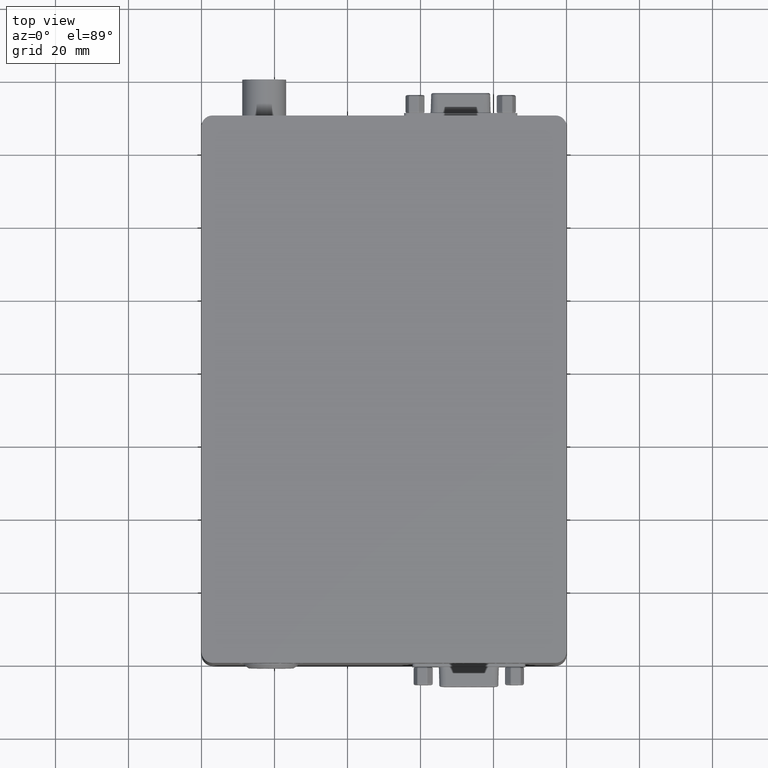
[diagram: clean part render]
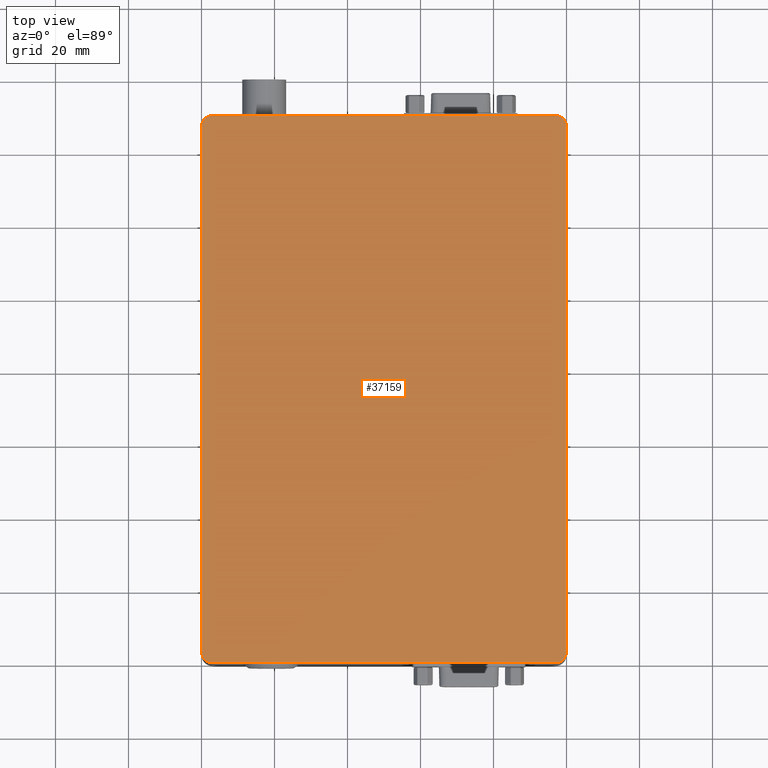
[diagram: same view with one face highlighted and labeled with its STEP entity id]
A machine part, top view. The second image highlights one B-rep face of the part: STEP entity #37159.
In plain terms, the highlighted planar face has unit normal (0, 0, 1).
Its self-contained STEP definition (entity closure, byte-faithful):
#219 = CARTESIAN_POINT ( 'NONE',  ( 3.000000000000000000, 150.0000000000000000, 0.000000000000000000 ) ) ;
#1150 = CARTESIAN_POINT ( 'NONE',  ( 97.00000000000000000, 3.000000000000000000, 0.000000000000000000 ) ) ;
#1936 = AXIS2_PLACEMENT_3D ( 'NONE', #57184, #49600, #35601 ) ;
#2102 = CARTESIAN_POINT ( 'NONE',  ( 0.000000000000000000, 150.0000000000000000, 0.000000000000000000 ) ) ;
#2247 = CARTESIAN_POINT ( 'NONE',  ( 0.000000000000000000, 150.0000000000000000, 0.000000000000000000 ) ) ;
#3251 = AXIS2_PLACEMENT_3D ( 'NONE', #36546, #40344, #18136 ) ;
#3879 = CARTESIAN_POINT ( 'NONE',  ( 0.000000000000000000, 3.000000000000002665, 0.000000000000000000 ) ) ;
#3886 = DIRECTION ( 'NONE',  ( -1.000000000000000000, 0.000000000000000000, -0.000000000000000000 ) ) ;
#4762 = CARTESIAN_POINT ( 'NONE',  ( 0.000000000000000000, 150.0000000000000000, 0.000000000000000000 ) ) ;
#5137 = EDGE_CURVE ( 'NONE', #54072, #30715, #14965, .T. ) ;
#5688 = ORIENTED_EDGE ( 'NONE', *, *, #13204, .T. ) ;
#6085 = AXIS2_PLACEMENT_3D ( 'NONE', #30723, #48520, #44716 ) ;
#6284 = AXIS2_PLACEMENT_3D ( 'NONE', #2247, #46913, #16268 ) ;
#7025 = VERTEX_POINT ( 'NONE', #40008 ) ;
#8166 = VERTEX_POINT ( 'NONE', #219 ) ;
#10089 = VECTOR ( 'NONE', #47340, 1000.000000000000000 ) ;
#10355 = CARTESIAN_POINT ( 'NONE',  ( 100.0000000000000000, 147.0000000000000000, 0.000000000000000000 ) ) ;
#11347 = ORIENTED_EDGE ( 'NONE', *, *, #21851, .T. ) ;
#11675 = CARTESIAN_POINT ( 'NONE',  ( 0.000000000000000000, 147.0000000000000000, 0.000000000000000000 ) ) ;
#13204 = EDGE_CURVE ( 'NONE', #47827, #51966, #47616, .T. ) ;
#14965 = LINE ( 'NONE', #2102, #10089 ) ;
#15156 = AXIS2_PLACEMENT_3D ( 'NONE', #1150, #18967, #15163 ) ;
#15163 = DIRECTION ( 'NONE',  ( 0.000000000000000000, -1.000000000000000000, 0.000000000000000000 ) ) ;
#15731 = ORIENTED_EDGE ( 'NONE', *, *, #21974, .F. ) ;
#16268 = DIRECTION ( 'NONE',  ( 0.000000000000000000, -1.000000000000000000, 0.000000000000000000 ) ) ;
#17847 = VECTOR ( 'NONE', #3886, 1000.000000000000000 ) ;
#18136 = DIRECTION ( 'NONE',  ( 0.000000000000000000, -1.000000000000000000, 0.000000000000000000 ) ) ;
#18967 = DIRECTION ( 'NONE',  ( 0.000000000000000000, 0.000000000000000000, 1.000000000000000000 ) ) ;
#19420 = EDGE_CURVE ( 'NONE', #51966, #8166, #26962, .T. ) ;
#20724 = CARTESIAN_POINT ( 'NONE',  ( 100.0000000000000000, 150.0000000000000000, 0.000000000000000000 ) ) ;
#21390 = EDGE_CURVE ( 'NONE', #23284, #44807, #39484, .T. ) ;
#21851 = EDGE_CURVE ( 'NONE', #23284, #7025, #52450, .T. ) ;
#21974 = EDGE_CURVE ( 'NONE', #47827, #7025, #38802, .T. ) ;
#22294 = ORIENTED_EDGE ( 'NONE', *, *, #21390, .F. ) ;
#23284 = VERTEX_POINT ( 'NONE', #37309 ) ;
#25408 = VECTOR ( 'NONE', #35104, 1000.000000000000000 ) ;
#26962 = LINE ( 'NONE', #4762, #17847 ) ;
#28439 = CIRCLE ( 'NONE', #3251, 3.000000000000000000 ) ;
#29121 = PLANE ( 'NONE',  #6284 ) ;
#30715 = VERTEX_POINT ( 'NONE', #3879 ) ;
#30723 = CARTESIAN_POINT ( 'NONE',  ( 3.000000000000000000, 147.0000000000000000, 0.000000000000000000 ) ) ;
#35104 = DIRECTION ( 'NONE',  ( -1.000000000000000000, 0.000000000000000000, -0.000000000000000000 ) ) ;
#35601 = DIRECTION ( 'NONE',  ( 0.000000000000000000, -1.000000000000000000, 0.000000000000000000 ) ) ;
#36546 = CARTESIAN_POINT ( 'NONE',  ( 3.000000000000000000, 3.000000000000000000, 0.000000000000000000 ) ) ;
#37159 = ADVANCED_FACE ( 'NONE', ( #56249 ), #29121, .T. ) ;
#37309 = CARTESIAN_POINT ( 'NONE',  ( 97.00000000000000000, 0.000000000000000000, 0.000000000000000000 ) ) ;
#38510 = ORIENTED_EDGE ( 'NONE', *, *, #40387, .T. ) ;
#38802 = LINE ( 'NONE', #20724, #51540 ) ;
#39083 = DIRECTION ( 'NONE',  ( 0.000000000000000000, -1.000000000000000000, 0.000000000000000000 ) ) ;
#39484 = LINE ( 'NONE', #47673, #25408 ) ;
#39631 = CIRCLE ( 'NONE', #6085, 3.000000000000002665 ) ;
#40008 = CARTESIAN_POINT ( 'NONE',  ( 100.0000000000000000, 3.000000000000002665, 0.000000000000000000 ) ) ;
#40344 = DIRECTION ( 'NONE',  ( 0.000000000000000000, 0.000000000000000000, 1.000000000000000000 ) ) ;
#40387 = EDGE_CURVE ( 'NONE', #30715, #44807, #28439, .T. ) ;
#42409 = EDGE_CURVE ( 'NONE', #8166, #54072, #39631, .T. ) ;
#43753 = EDGE_LOOP ( 'NONE', ( #50183, #56339, #49299, #38510, #22294, #11347, #15731, #5688 ) ) ;
#44716 = DIRECTION ( 'NONE',  ( 0.000000000000000000, -1.000000000000000000, 0.000000000000000000 ) ) ;
#44807 = VERTEX_POINT ( 'NONE', #48591 ) ;
#46913 = DIRECTION ( 'NONE',  ( 0.000000000000000000, 0.000000000000000000, 1.000000000000000000 ) ) ;
#47340 = DIRECTION ( 'NONE',  ( 0.000000000000000000, -1.000000000000000000, 0.000000000000000000 ) ) ;
#47616 = CIRCLE ( 'NONE', #1936, 3.000000000000002665 ) ;
#47673 = CARTESIAN_POINT ( 'NONE',  ( 0.000000000000000000, 0.000000000000000000, 0.000000000000000000 ) ) ;
#47827 = VERTEX_POINT ( 'NONE', #10355 ) ;
#48278 = CARTESIAN_POINT ( 'NONE',  ( 97.00000000000000000, 150.0000000000000000, 0.000000000000000000 ) ) ;
#48520 = DIRECTION ( 'NONE',  ( 0.000000000000000000, 0.000000000000000000, 1.000000000000000000 ) ) ;
#48591 = CARTESIAN_POINT ( 'NONE',  ( 3.000000000000000000, 0.000000000000000000, 0.000000000000000000 ) ) ;
#49299 = ORIENTED_EDGE ( 'NONE', *, *, #5137, .T. ) ;
#49600 = DIRECTION ( 'NONE',  ( 0.000000000000000000, 0.000000000000000000, 1.000000000000000000 ) ) ;
#50183 = ORIENTED_EDGE ( 'NONE', *, *, #19420, .T. ) ;
#51540 = VECTOR ( 'NONE', #39083, 1000.000000000000000 ) ;
#51966 = VERTEX_POINT ( 'NONE', #48278 ) ;
#52450 = CIRCLE ( 'NONE', #15156, 3.000000000000000000 ) ;
#54072 = VERTEX_POINT ( 'NONE', #11675 ) ;
#56249 = FACE_OUTER_BOUND ( 'NONE', #43753, .T. ) ;
#56339 = ORIENTED_EDGE ( 'NONE', *, *, #42409, .T. ) ;
#57184 = CARTESIAN_POINT ( 'NONE',  ( 97.00000000000000000, 147.0000000000000000, 0.000000000000000000 ) ) ;